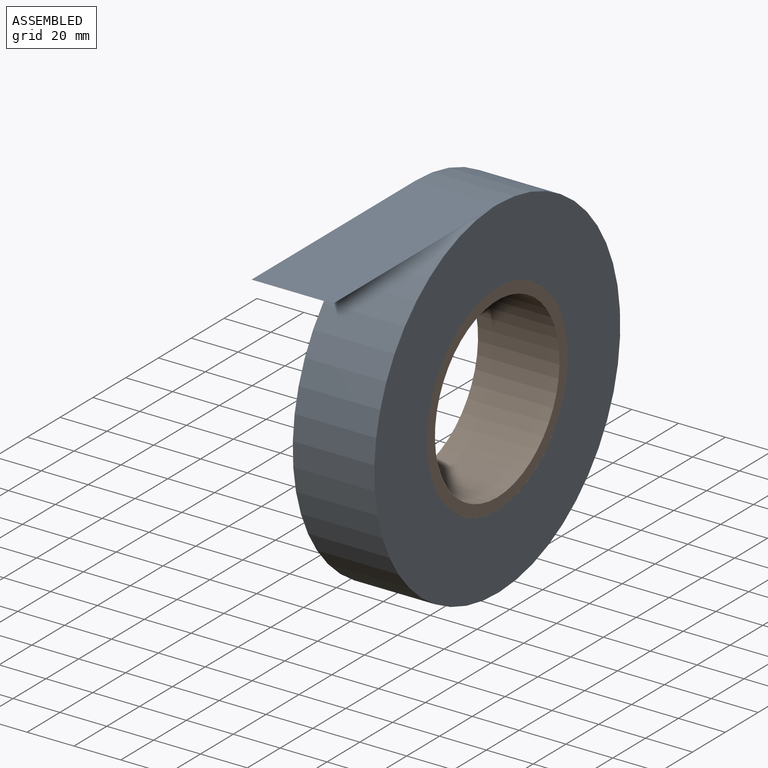
[diagram: assembled view]
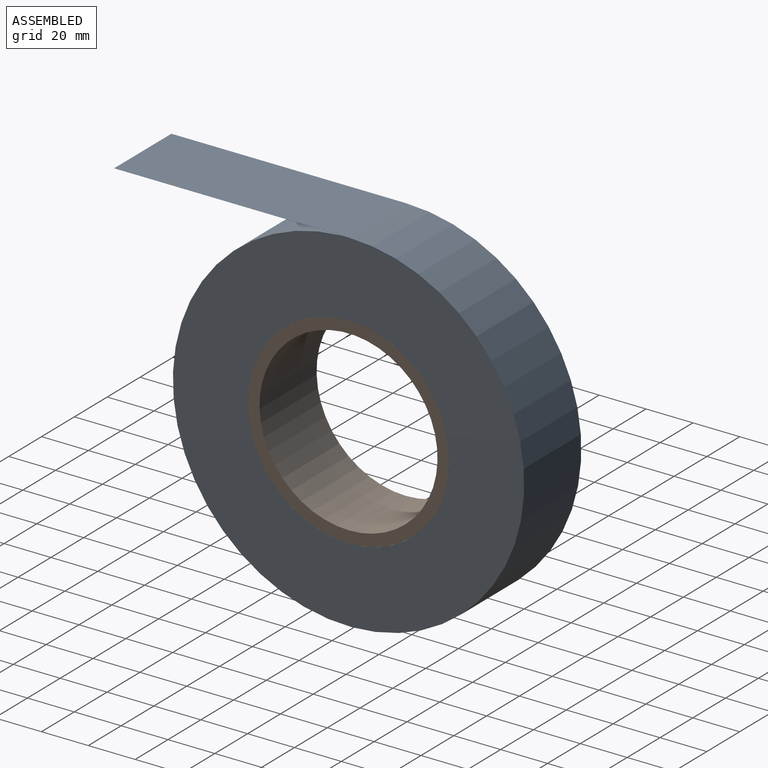
[diagram: assembled view, second angle]
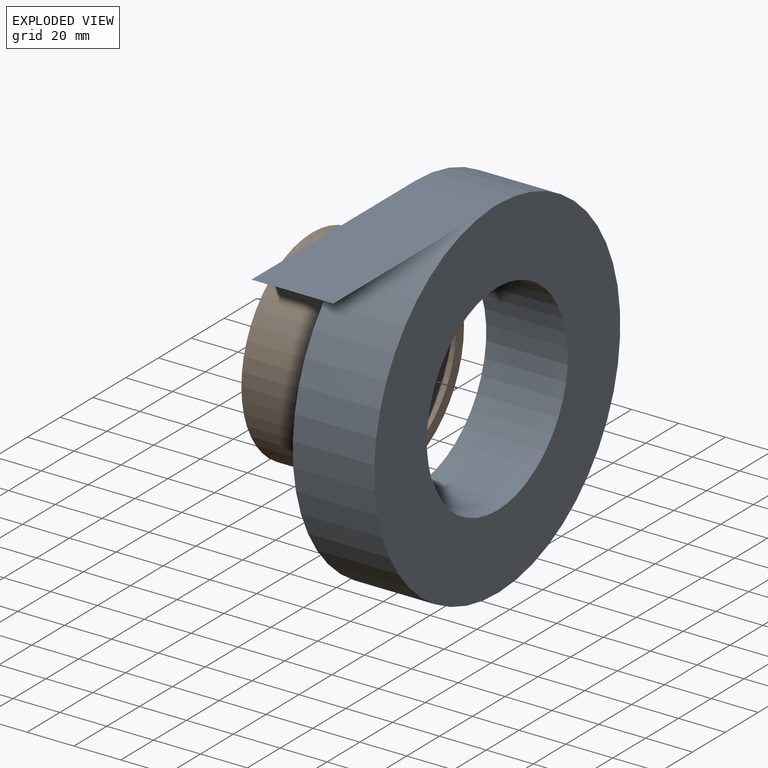
[diagram: exploded view]
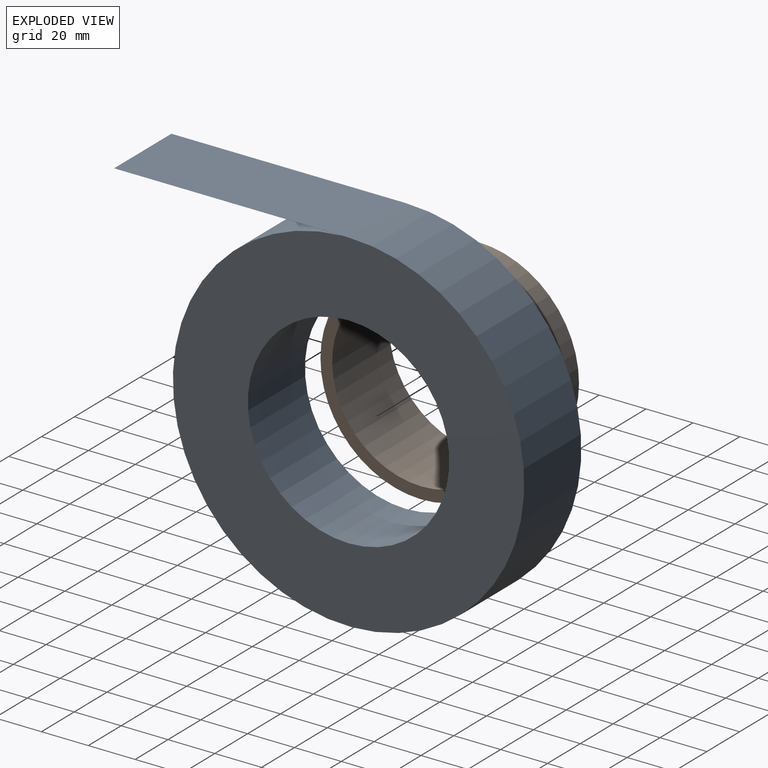
[diagram: exploded view, second angle]
ASSEMBLY  parts=2 mates=2
PART A: 7 faces, bbox 175x34.8x150 mm
  f0: cylinder r=75mm len=150mm, axis (0,1,0), area 16303.8mm2, adj f2,f3,f4,f6
  f1: cylinder r=43mm len=86mm, axis (0,1,0), area 9402.2mm2, adj f2,f3
  f2: plane 175x150mm, normal (0,-1,0), area 11867.6mm2, adj f0,f1,f4,f5,f6
  f3: plane 175x150mm, normal (0,1,0), area 11867.6mm2, adj f0,f1,f4,f5,f6
  f4: plane 97.26x34.8mm, normal (0,0,-1), area 3384.7mm2, adj f0,f2,f3,f5
  f5: plane 34.8x0.05mm, normal (1,0,0), area 1.7mm2, adj f2,f3,f4,f6
  f6: plane 100x34.8mm, normal (0,0,1), area 3480mm2, adj f0,f2,f3,f5
PART B: 4 faces, bbox 86x34.8x86 mm
  f0: cylinder r=38mm len=76mm, axis (0,1,0), area 8308.9mm2, adj f2,f3
  f1: cylinder r=43mm len=86mm, axis (0,1,0), area 9402.2mm2, adj f2,f3
  f2: plane 86x86mm, normal (0,-1,0), area 1272.3mm2, adj f0,f1
  f3: plane 86x86mm, normal (0,1,0), area 1272.3mm2, adj f0,f1
PLACE A rot(axis=(0,0,-1),90deg) t=(-66.91,-57.76,-6.16)mm
PLACE B rot(axis=(0,0,-1),90deg) t=(-66.91,-57.78,-6.13)mm
MATE planar A.f2 <-> B.f1  axis (-1,0,0) through (-101.71,-57.78,-6.13)mm
MATE cylindrical B.f1 <-> A.f2  axis (-1,0,0) through (-101.71,-57.78,-6.13)mm
